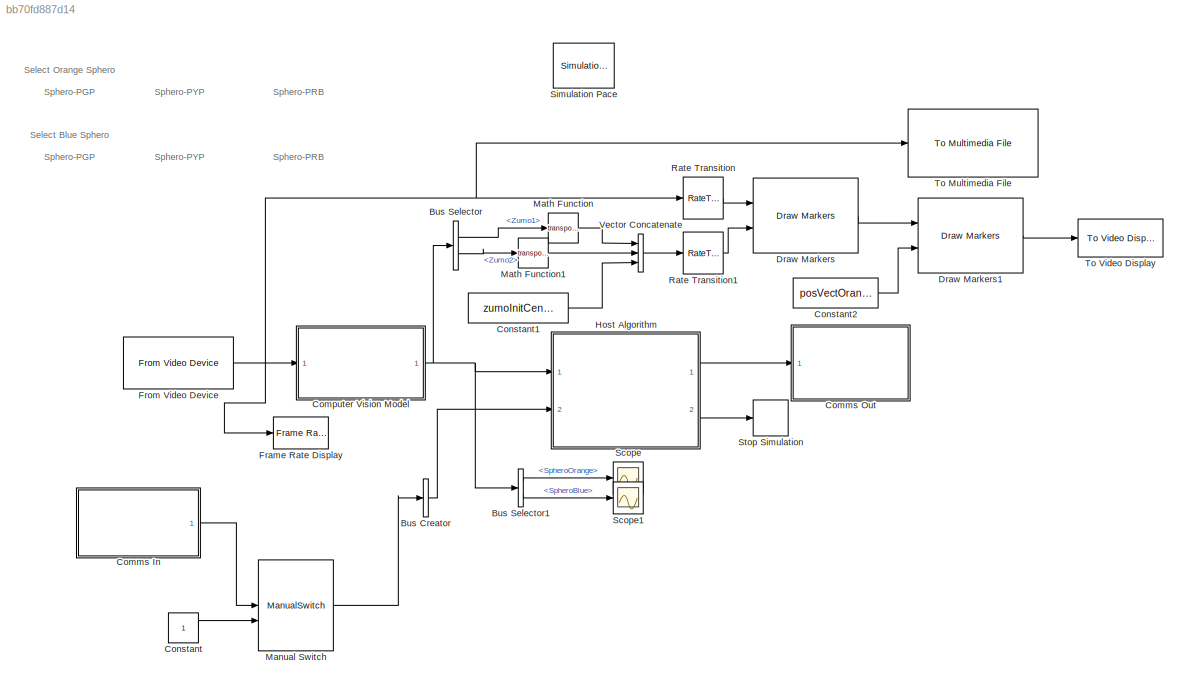
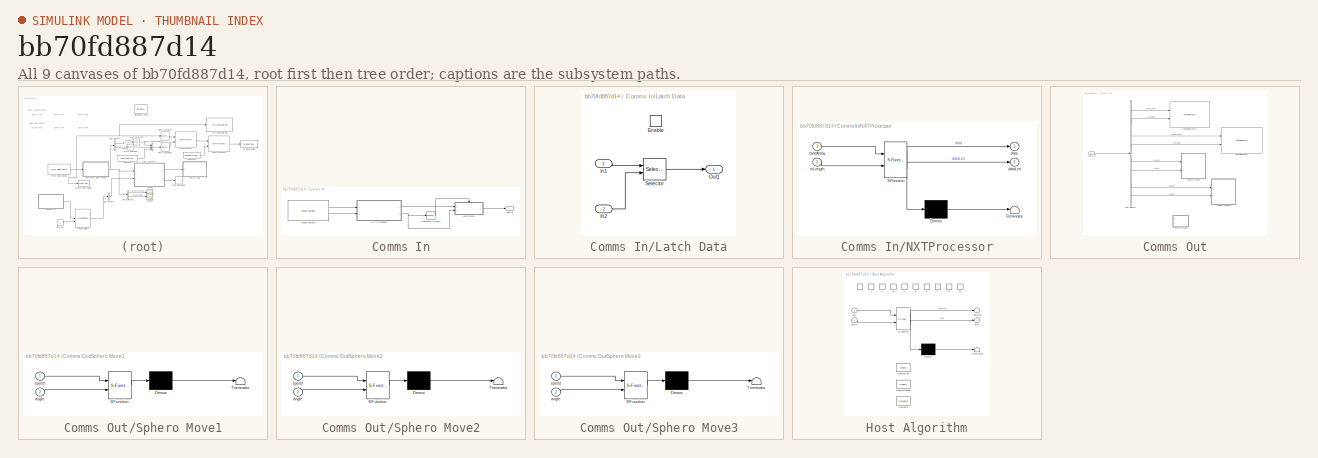
[diagram: thumbnail index - all 9 canvases of the model, root first then tree order]
MODEL slx_bb70fd887d14
KIND model
CONFIG InitFcn = initCV;\n\nfprintf('NXT init\n');\n\n%try\n n = comms.Bt(RobotID.NXT);\n n.reset();\n n.init();\nfprintf('NXT init done\n');
CONFIG StopFcn = %figure; \n%plot(SpheroPos.signals.values(:,1), SpheroPos.signals.values(:, 2), 'kx');\n%hold on; \n%plot(points(:, 1), points(:, 2), 'ro');\n%hold off\n%axis([0 640 0 480])\n\n%distEnd =  pdist([points(end, :); SpheroPos.signals.values(end, :)])
BLOCK [BusCreator] Bus Creator
  DisplayOption = bar
  Inputs = 1
  OutDataTypeStr = Bus: CommsIn
  Ports = [1, 1]
BLOCK [BusSelector] Bus Selector
  Commented = on
  DialogController = Simulink.DDGSource_BusSelector
  OutputSignals = Zumo1,Zumo2
  Ports = [1, 2]
BLOCK [BusSelector] Bus Selector1
  OutputSignals = SpheroOrange,SpheroBlue
  Ports = [1, 2]
BLOCK [SubSystem] Comms In
  Ports = [0, 1]
  RequestExecContextInheritance = off
BLOCK [Reference] Comms In/Compare To Zero  REF=simulink/Logic and Bit
Operations/Compare
To Zero
  OutDataTypeStr = boolean
  Ports = [1, 1]
  SourceBlock = simulink/Logic and Bit\nOperations/Compare\nTo Zero
  SourceType = Compare To Zero
  ZeroCross = on
  relop = >
BLOCK [SubSystem] Comms In/Latch Data
  Ports = [2, 1, 1]
  RequestExecContextInheritance = off
  TreatAsAtomicUnit = on
BLOCK [EnablePort] Comms In/Latch Data/Enable
  Ports = []
BLOCK [Inport] Comms In/Latch Data/In1
  IconDisplay = Port number
  OutDataTypeStr = uint8
BLOCK [Inport] Comms In/Latch Data/In2
  IconDisplay = Port number
  Port = 2
BLOCK [Outport] Comms In/Latch Data/Out1
  IconDisplay = Port number
  InitialOutput = uint8(0)
  OutDataTypeStr = uint8
BLOCK [Selector] Comms In/Latch Data/Selector
  IndexOptions = Index vector (port)
  Indices = [1 3]
  InputPortWidth = 8
  Ports = [2, 1]
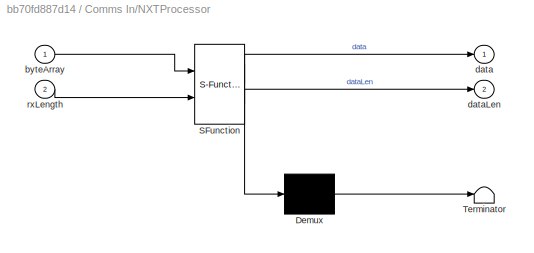
BLOCK [SubSystem] Comms In/NXTProcessor
  ErrorFcn = Stateflow.Translate.translate
  PermitHierarchicalResolution = ExplicitOnly
  Ports = [2, 2]
  RequestExecContextInheritance = off
  SFBlockType = MATLAB Function
  TreatAsAtomicUnit = on
BLOCK [Demux] Comms In/NXTProcessor/ Demux 
  Outputs = 1
  Ports = [1, 1]
BLOCK [S-Function] Comms In/NXTProcessor/ SFunction 
  EnableBusSupport = on
  FunctionName = sf_sfun
  Parameters = NXTBufferSize
  PortCounts = [2 3]
  Ports = [2, 3]
  Tag = Stateflow S-Function hostComms_backup_twoLoops 3
BLOCK [Terminator] Comms In/NXTProcessor/ Terminator 
BLOCK [Inport] Comms In/NXTProcessor/byteArray
  IconDisplay = Port number
BLOCK [Outport] Comms In/NXTProcessor/data
  IconDisplay = Port number
BLOCK [Outport] Comms In/NXTProcessor/dataLen
  IconDisplay = Port number
  Port = 2
BLOCK [Inport] Comms In/NXTProcessor/rxLength
  IconDisplay = Port number
  Port = 2
BLOCK [Outport] Comms In/hostIn
  IconDisplay = Port number
  OutDataTypeStr = uint8
BLOCK [Reference] Comms In/readBluetooth  REF=hostCommsLib/readBluetooth
  Ports = [0, 2]
  SourceBlock = hostCommsLib/readBluetooth
  numBytes = 4
  robotId = RobotID.NXT
BLOCK [SubSystem] Comms Out
  Ports = [1]
  RequestExecContextInheritance = off
BLOCK [BusSelector] Comms Out/Bus Selector
  OutputSignals = Zumo1.motorSpeed,Zumo1.TxEnable,Zumo2.motorSpeed,Zumo2.TxEnable,SpheroOrange.velocity,SpheroOrange.angle,SpheroBlue.velocity,SpheroBlue.angle
  Ports = [1, 8]
BLOCK [SubSystem] Comms Out/Sphero Move1
  Commented = on
  ErrorFcn = Stateflow.Translate.translate
  PermitHierarchicalResolution = ExplicitOnly
  Ports = [2]
  RequestExecContextInheritance = off
  SFBlockType = MATLAB Function
  TreatAsAtomicUnit = on
BLOCK [Demux] Comms Out/Sphero Move1/ Demux 
  Outputs = 1
  Ports = [1, 1]
BLOCK [S-Function] Comms Out/Sphero Move1/ SFunction 
  EnableBusSupport = on
  FunctionName = sf_sfun
  Parameters = sphero_RobotID
  PortCounts = [2 1]
  Ports = [2, 1]
  Tag = Stateflow S-Function hostComms_backup_twoLoops 1
BLOCK [Terminator] Comms Out/Sphero Move1/ Terminator 
BLOCK [Inport] Comms Out/Sphero Move1/angle
  IconDisplay = Port number
  Port = 2
BLOCK [Inport] Comms Out/Sphero Move1/speed
  IconDisplay = Port number
BLOCK [SubSystem] Comms Out/Sphero Move2
  ErrorFcn = Stateflow.Translate.translate
  PermitHierarchicalResolution = ExplicitOnly
  Ports = [2]
  RequestExecContextInheritance = off
  SFBlockType = MATLAB Function
  TreatAsAtomicUnit = on
BLOCK [Demux] Comms Out/Sphero Move2/ Demux 
  Outputs = 1
  Ports = [1, 1]
BLOCK [S-Function] Comms Out/Sphero Move2/ SFunction 
  EnableBusSupport = on
  FunctionName = sf_sfun
  Parameters = sphero_RobotID
  PortCounts = [2 1]
  Ports = [2, 1]
  Tag = Stateflow S-Function hostComms_backup_twoLoops 5
BLOCK [Terminator] Comms Out/Sphero Move2/ Terminator 
BLOCK [Inport] Comms Out/Sphero Move2/angle
  IconDisplay = Port number
  Port = 2
BLOCK [Inport] Comms Out/Sphero Move2/speed
  IconDisplay = Port number
BLOCK [SubSystem] Comms Out/Sphero Move3
  ErrorFcn = Stateflow.Translate.translate
  PermitHierarchicalResolution = ExplicitOnly
  Ports = [2]
  RequestExecContextInheritance = off
  SFBlockType = MATLAB Function
  TreatAsAtomicUnit = on
BLOCK [Demux] Comms Out/Sphero Move3/ Demux 
  Outputs = 1
  Ports = [1, 1]
BLOCK [S-Function] Comms Out/Sphero Move3/ SFunction 
  EnableBusSupport = on
  FunctionName = sf_sfun
  Parameters = sphero_RobotID
  PortCounts = [2 1]
  Ports = [2, 1]
  Tag = Stateflow S-Function hostComms_backup_twoLoops 4
BLOCK [Terminator] Comms Out/Sphero Move3/ Terminator 
BLOCK [Inport] Comms Out/Sphero Move3/angle
  IconDisplay = Port number
  Port = 2
BLOCK [Inport] Comms Out/Sphero Move3/speed
  IconDisplay = Port number
BLOCK [Inport] Comms Out/hostOut
  IconDisplay = Port number
  OutDataTypeStr = Bus: CommsOut
BLOCK [Reference] Comms Out/writeBluetooth  REF=hostCommsLib/writeBluetooth
  Ports = [2]
  SourceBlock = hostCommsLib/writeBluetooth
  robotId = RobotID.ZUMO_329B
BLOCK [Reference] Comms Out/writeBluetooth1  REF=hostCommsLib/writeBluetooth
  Ports = [2]
  SourceBlock = hostCommsLib/writeBluetooth
  robotId = RobotID.ZUMO_32B0
BLOCK [ModelReference] Computer Vision Model
  CopyOfModelName = processCamera
  DefaultDataLogging = on
  ModelNameDialog = processCamera
  ModelReferenceVersion = 1.20
  Ports = [1, 1]
BLOCK [Constant] Constant
  OutDataTypeStr = uint8
BLOCK [Constant] Constant1
  Commented = on
  Value = zumoInitCentroids'
  VectorParams1D = off
BLOCK [Constant] Constant2
  Commented = on
  Value = posVectOrange'
BLOCK [Reference] Draw Markers  REF=visiontextngfix/Draw Markers
  Commented = on
  LockScale = off
  Ports = [2, 1]
  SourceBlock = visiontextngfix/Draw Markers
  SourceType = Draw Markers
  accumFracLength = 14
  accumMode = Same as product output
  accumWordLength = 32
  antialiasing = off
  color = [255 0 0]
  display = User-specified value
  fill = off
  fillClrSource = Specify via dialog
  imagePorts = One multidimensional signal
  inType = Obsolete
  intensity = 200
  memoryFracLength = 15
  memoryMode = Specify word length
  memoryWordLength = 16
  opacity = 0.6
  overflowMode = off
  prodOutputFracLength = 14
  prodOutputMode = Binary point scaling
  prodOutputWordLength = 32
  roundingMode = Floor
  shape = Square
  size = 3
  viewport = Entire image
BLOCK [Reference] Draw Markers1  REF=visiontextngfix/Draw Markers
  Commented = on
  LockScale = off
  Ports = [2, 1]
  SourceBlock = visiontextngfix/Draw Markers
  SourceType = Draw Markers
  accumFracLength = 14
  accumMode = Same as product output
  accumWordLength = 32
  antialiasing = off
  color = [255 0 0]
  display = User-specified value
  fill = off
  fillClrSource = Specify via dialog
  imagePorts = One multidimensional signal
  inType = Obsolete
  intensity = 200
  memoryFracLength = 15
  memoryMode = Specify word length
  memoryWordLength = 16
  opacity = 0.6
  overflowMode = off
  prodOutputFracLength = 14
  prodOutputMode = Binary point scaling
  prodOutputWordLength = 32
  roundingMode = Floor
  shape = X-mark
  size = 3
  viewport = Entire image
BLOCK [Reference] Frame Rate Display  REF=visionsinks/Frame Rate
Display
  Ports = [1]
  SourceBlock = visionsinks/Frame Rate\nDisplay
  SourceType = Frame Rate Display
  UpdateRate = 10
BLOCK [Reference] From Video Device  REF=imaqlib/From Video Device
  AllMetadata = IsPositionTracked;IsSkeletonTracked;JointDepthIndices;JointImageIndices;JointTrackingState;JointWorldCoordinates;PositionDepthIndices;PositionImageIndices;PositionWorldCoordinates;SegmentationData;SkeletonTrackingID
  BayerSensorAlignment = grbg
  BlockHandle = 1921.0006
  CanDoHWTrigger = no
  DataType = single
  DevXMLPath = <path>
  Device = winvideo 1 (Logitech QuickCam Pro 9000)
  DeviceMenu = winvideo 1 (Logitech QuickCam Pro 9000)
  EnableHWTrigger = off
  EngLibPath = <path>
  EngXMLPath = <path>
  ObjConstructor = videoinput('winvideo', 1)
  OutputPortsMode = One multidimensional signal
  Ports = [0, 1]
  ROIColumn = 0
  ROIHeight = 480
  ROIPosition = [0 0 480 640]
  ROIRow = 0
  ROIWidth = 640
  ReturnedColorSpace = rgb
  SampleTime = 0.2
  SourceBlock = imaqlib/From Video Device
  SourceType = From Video Device
  TriggerConfiguration = none/none
  UserDataPersistent = on
  VideoFormat = RGB24_640x480
  VideoFormatMenu = RGB24_640x480
  VideoSource = input1
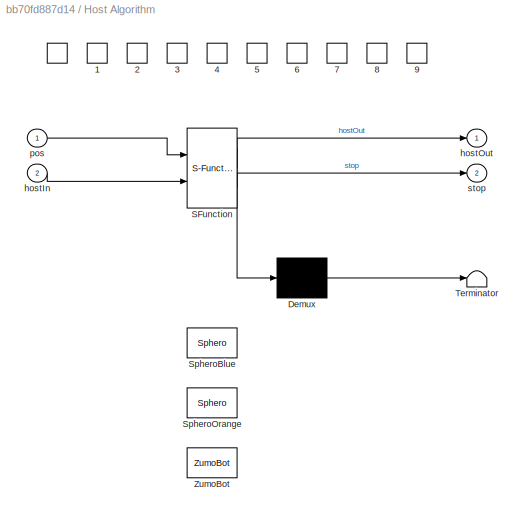
BLOCK [SubSystem] Host Algorithm
  AncestorBlock = hostLogic/Host Algorithm
  ErrorFcn = Stateflow.Translate.translate
  PermitHierarchicalResolution = ExplicitOnly
  Ports = [2, 2]
  RequestExecContextInheritance = off
  SFBlockType = Chart
  TreatAsAtomicUnit = on
BLOCK [DataStoreMemory] Host Algorithm/ 
  DataStoreName = DoneBlue
  InitialValue = Stateflow.SLINSF.SimulinkMan.getDSMInitVal([1], 0, 'DoneBlue')
  OutDataTypeStr = boolean
  SignalType = real
BLOCK [DataStoreMemory] Host Algorithm/ 1
  DataStoreName = DoneOrange
  InitialValue = Stateflow.SLINSF.SimulinkMan.getDSMInitVal([1], 0, 'DoneOrange')
  OutDataTypeStr = boolean
  SignalType = real
BLOCK [DataStoreMemory] Host Algorithm/ 2
  DataStoreName = angleBlue
  InitialValue = Stateflow.SLINSF.SimulinkMan.getDSMInitVal([1], 0, 'angleBlue')
  OutDataTypeStr = double
  SignalType = real
BLOCK [DataStoreMemory] Host Algorithm/ 3
  DataStoreName = angleOrange
  InitialValue = Stateflow.SLINSF.SimulinkMan.getDSMInitVal([1], 0, 'angleOrange')
  OutDataTypeStr = double
  SignalType = real
BLOCK [DataStoreMemory] Host Algorithm/ 4
  DataStoreName = curPosBlue
  InitialValue = Stateflow.SLINSF.SimulinkMan.getDSMInitVal([2], 0, 'curPosBlue')
  OutDataTypeStr = double
  SignalType = real
BLOCK [DataStoreMemory] Host Algorithm/ 5
  DataStoreName = curPosOrange
  InitialValue = Stateflow.SLINSF.SimulinkMan.getDSMInitVal([2], 0, 'curPosOrange')
  OutDataTypeStr = double
  SignalType = real
BLOCK [DataStoreMemory] Host Algorithm/ 6
  DataStoreName = desPosBlue
  InitialValue = Stateflow.SLINSF.SimulinkMan.getDSMInitVal([2], 0, 'desPosBlue')
  OutDataTypeStr = double
  SignalType = real
BLOCK [DataStoreMemory] Host Algorithm/ 7
  DataStoreName = desPosOrange
  InitialValue = Stateflow.SLINSF.SimulinkMan.getDSMInitVal([2], 0, 'desPosOrange')
  OutDataTypeStr = double
  SignalType = real
BLOCK [DataStoreMemory] Host Algorithm/ 8
  DataStoreName = velocityBlue
  InitialValue = Stateflow.SLINSF.SimulinkMan.getDSMInitVal([1], 0, 'velocityBlue')
  OutDataTypeStr = double
  SignalType = real
BLOCK [DataStoreMemory] Host Algorithm/ 9
  DataStoreName = velocityOrange
  InitialValue = Stateflow.SLINSF.SimulinkMan.getDSMInitVal([1], 0, 'velocityOrange')
  OutDataTypeStr = double
  SignalType = real
BLOCK [Demux] Host Algorithm/ Demux 
  Outputs = 1
  Ports = [1, 1]
BLOCK [S-Function] Host Algorithm/ SFunction 
  EnableBusSupport = on
  FunctionName = sf_sfun
  Parameters = dThresh,hardcodeAngle,posVectBlue,posVectOrange,tClose,tOpen,tSpheroStop,z1Speed,z2Speed,zumoInitCentroids
  PortCounts = [2 3]
  Ports = [2, 3]
  Tag = Stateflow S-Function hostComms_backup_twoLoops 2
BLOCK [Terminator] Host Algorithm/ Terminator 
BLOCK [Reference] Host Algorithm/SpheroBlue  REF=minionLogic/Sphero
  DSMNames = Done,angle,curPos,desPos,velocity
  DSMValues = DoneBlue,angleBlue,curPosBlue,desPosBlue,velocityBlue
  Ports = []
  SourceBlock = minionLogic/Sphero
BLOCK [Reference] Host Algorithm/SpheroOrange  REF=minionLogic/Sphero
  DSMNames = Done,angle,curPos,desPos,velocity
  DSMValues = DoneOrange,angleOrange,curPosOrange,desPosOrange,velocityOrange
  Ports = []
  SourceBlock = minionLogic/Sphero
BLOCK [Reference] Host Algorithm/ZumoBot  REF=minionLogic/ZumoBot
  Commented = on
  Ports = []
  SourceBlock = minionLogic/ZumoBot
  SourceType = SubSystem
BLOCK [Inport] Host Algorithm/hostIn
  IconDisplay = Port number
  Port = 2
BLOCK [Outport] Host Algorithm/hostOut
  IconDisplay = Port number
BLOCK [Inport] Host Algorithm/pos
  IconDisplay = Port number
BLOCK [Outport] Host Algorithm/stop
  IconDisplay = Port number
  Port = 2
BLOCK [ManualSwitch] Manual Switch
BLOCK [Math] Math Function
  Commented = on
  Operator = transpose
  Ports = [1, 1]
BLOCK [Math] Math Function1
  Commented = on
  Operator = transpose
  Ports = [1, 1]
BLOCK [RateTransition] Rate Transition
  Commented = on
  OutPortSampleTime = 1.0
BLOCK [RateTransition] Rate Transition1
  Commented = on
  OutPortSampleTime = 1.0
BLOCK [Scope] Scope
  Floating = off
  NumInputPorts = 1
  Ports = [1]
  ShowLegends = off
  YMax = 0
  YMin = -2
BLOCK [Scope] Scope1
  Floating = off
  NumInputPorts = 1
  Ports = [1]
  SaveName = ScopeData1
  ShowLegends = off
BLOCK [Reference] Simulation Pace  REF=aerolibanimutils/Simulation Pace
  AttributesFormatString = %<SimulationPace> sec/sec
  OutputPaceError = off
  Ports = []
  SampleTime = 0.1
  SimulationPace = 1
  SleepMode = MATLAB Thread
  SourceBlock = aerolibanimutils/Simulation Pace
  SourceType = Simulation Pace
BLOCK [Stop] Stop Simulation
BLOCK [Reference] To Multimedia File  REF=dspvision/To Multimedia File
  Commented = on
  Ports = [1]
  SourceBlock = dspvision/To Multimedia File
  SourceType = To Multimedia File
  audioCompressor = None (uncompressed)
  audioDatatype = Determine from input data type
  fileType = MPEG4
  fourcc = RGB
  imagePorts = One multidimensional signal
  mj2000CompFactor = 10
  outputFilename = TrialRun.mp4
  streamSelection = Video only
  videoCompressor = None (uncompressed)
  videoQuality = 75
BLOCK [Reference] To Video Display  REF=visionsinks/To Video Display
  Commented = on
  OutputDevice = On-screen video monitor
  Ports = [1]
  SourceBlock = visionsinks/To Video Display
  SourceType = To Video Display
  dataOrg = Column-major
  fullScreen = off
  imagePorts = One multidimensional signal
  inputColorFormat = RGB
  inputType = Obsolete
  isWindowOpen = off
  openAtMdlStart = on
  saveWindowSize = off
  videoWindowHeight = 480
  videoWindowWidth = 640
  videoWindowX = 710
  videoWindowY = 48
BLOCK [Concatenate] Vector Concatenate
  Commented = on
  Mode = Multidimensional array
  NumInputs = 3
  Ports = [3, 1]
ANNOTATION (root): Select Blue Sphero
ANNOTATION (root): Select Orange Sphero
ANNOTATION (root): Sphero-PGP
ANNOTATION (root): Sphero-PRB
ANNOTATION (root): Sphero-PYP
LINE Bus Creator:1 -> Host Algorithm:2
LINE Bus Selector1:1 -> Scope:1
LINE Bus Selector1:2 -> Scope1:1
LINE Bus Selector:1 -> Math Function:1
LINE Bus Selector:2 -> Math Function1:1
LINE Comms In/Compare To Zero:1 -> Comms In/Latch Data:enable
LINE Comms In/Latch Data/In1:1 -> Comms In/Latch Data/Selector:1
LINE Comms In/Latch Data/In2:1 -> Comms In/Latch Data/Selector:2
LINE Comms In/Latch Data/Selector:1 -> Comms In/Latch Data/Out1:1
LINE Comms In/Latch Data:1 -> Comms In/hostIn:1
LINE Comms In/NXTProcessor:1 -> Comms In/Latch Data:1
NET Comms In/NXTProcessor:2 -> Comms In/Compare To Zero:1, Comms In/Latch Data:2
LINE Comms In/readBluetooth:1 -> Comms In/NXTProcessor:1
LINE Comms In/readBluetooth:2 -> Comms In/NXTProcessor:2
LINE Comms In:1 -> Manual Switch:1
LINE Comms Out/Bus Selector:1 -> Comms Out/writeBluetooth1:1
LINE Comms Out/Bus Selector:2 -> Comms Out/writeBluetooth1:2
LINE Comms Out/Bus Selector:3 -> Comms Out/writeBluetooth:1
LINE Comms Out/Bus Selector:4 -> Comms Out/writeBluetooth:2
LINE Comms Out/Bus Selector:5 -> Comms Out/Sphero Move2:1
LINE Comms Out/Bus Selector:6 -> Comms Out/Sphero Move2:2
LINE Comms Out/Bus Selector:7 -> Comms Out/Sphero Move3:1
LINE Comms Out/Bus Selector:8 -> Comms Out/Sphero Move3:2
LINE Comms Out/hostOut:1 -> Comms Out/Bus Selector:1
NET Computer Vision Model:1 -> Bus Selector1:1, Bus Selector:1, Host Algorithm:1
LINE Constant1:1 -> Vector Concatenate:3
LINE Constant2:1 -> Draw Markers1:2
LINE Constant:1 -> Manual Switch:2
LINE Draw Markers1:1 -> To Video Display:1
LINE Draw Markers:1 -> Draw Markers1:1
NET From Video Device:1 -> Computer Vision Model:1, Frame Rate Display:1, Rate Transition:1, To Multimedia File:1
LINE Host Algorithm:1 -> Comms Out:1
LINE Host Algorithm:2 -> Stop Simulation:1
LINE Manual Switch:1 -> Bus Creator:1
LINE Math Function1:1 -> Vector Concatenate:2
LINE Math Function:1 -> Vector Concatenate:1
LINE Rate Transition1:1 -> Draw Markers:2
LINE Rate Transition:1 -> Draw Markers:1
LINE Vector Concatenate:1 -> Rate Transition1:1
note: NET lines group one-source signal fan-out (src -> all destinations, sorted); 1:1 wires keep LINE
CHART Comms Out/Sphero Move1 states=1 transitions=1
  STATE_LABEL 'eML_blk_kernel()'
  STATE_LABEL "SCRIPT:\nfunction fcn(speed, angle, sphero_RobotID)\n%#codegen\ncoder.extrinsic('move_sphero_comms')\n\nmove_sphero_comms(sphero_RobotID, speed, angle);"
CHART Host Algorithm states=28 transitions=26
  STATE_LABEL 'ZumoBot'
  STATE_LABEL 'SpheroBlue'
  STATE_LABEL 'SpheroOrange'
  STATE_LABEL "Top\nen:\nhostOut.Zumo1.motorSpeed = uint8(0);\nhostOut.Zumo1.TxEnable = 0;\nhostOut.Zumo2.motorSpeed = uint8(0);\nhostOut.Zumo2.TxEnable = 0;\nvelocityOrange = 0;\nangleOrange = 0;\nvelocityBlue = 0;\nangleBlue = 0;\nstop = 0;\nen,du,ex:\n% map all inputs to DSM's\ncurPosOrange = pos.SpheroOrange;\ncurPosBlue = pos.SpheroBlue;\n%\n% initialize des pos blue/orange for now\n%desPosOrange = [360 240]';\n%desPosBlue =...<+13ch>"
  STATE_LABEL 'Standby\n%Wait for NXT\n%to ascend\n%mountain'
  STATE_LABEL 'Blink\nentry:\n\tspheroBlink(RobotID.SPHERO_BLUE, idx);\n\tspheroBlink(RobotID.SPHERO_ORANGE, idx);\n\tidx= idx+1;\non every(5, tick):\n\tspheroBlink(RobotID.SPHERO_BLUE, idx);\n\tspheroBlink(RobotID.SPHERO_ORANGE, idx);\n\tidx= idx+1;'
  STATE_LABEL 'SpheroHardCodedMoveO\nen, du: MoveSphero(100, hardcodeAngle, RobotID.SPHERO_ORANGE);'
  STATE_LABEL 'Workspace (sldd) Parameters\nposVectOrange %initialized by CV\nposVectBlue %initialized by CV\nKp\nKd\nKi\nrestartspeed\nstopRadius\nstopspeed'
  STATE_LABEL 'MoveOPoint1 % SpheroOrange to init point\nen:\ndesPosOrange = posVectOrange(:,1);\nSpheroOrange.TurnOn();\n'
  STATE_LABEL 'MoveOPoint2 % SpheroOrange to gate\nen:\ndesPosOrange = posVectOrange(:,2);\nSpheroOrange.TurnOn();\n'
  STATE_LABEL 'SpheroHardCodedMoveB\nen, du: MoveSphero(100, hardcodeAngle, RobotID.SPHERO_BLUE);'
  STATE_LABEL 'MoveBPoint1 % SpheroBlue to init point\nen:\ndesPosBlue = posVectBlue(:,1);\nSpheroBlue.TurnOn();\n'
  STATE_LABEL 'spheroBlink(robot, index)'
  STATE_LABEL "SCRIPT:\nfunction spheroBlink(robot, index)\n \ncoder.extrinsic('spheroBlinking');\n\nspheroBlinking(robot, index);\n\n"
  STATE_LABEL 'tf = zumoClose(initPos,curPos,dTh)'
  STATE_LABEL '{tf = norm(curPos.Zumo1 - initPos(:,1)) <= dTh;}'
  STATE_LABEL 'Blink1\nentry:\nidx = 1;\nspheroBlink(RobotID.SPHERO_ORANGE, idx);\nidx= idx+1;\non every(5, tick):\nspheroBlink(RobotID.SPHERO_ORANGE, idx);\nidx= idx+1;'
  STATE_LABEL 'MoveSphero(speed, angle, sphero_RobotID)'
  STATE_LABEL "SCRIPT:\nfunction MoveSphero(speed, angle, sphero_RobotID)\n%#codegen\ncoder.extrinsic('move_sphero_comms')\n\nmove_sphero_comms(sphero_RobotID, speed, angle);\n\n"
  STATE_LABEL 'State2 % Zumo open gate\nen:\nhostOut.Zumo1.motorSpeed = uint8(z1Speed);\nhostOut.Zumo1.TxEnable = 1;\nhostOut.Zumo2.motorSpeed = uint8(z2Speed);\nhostOut.Zumo2.TxEnable = 1;\nex:\nhostOut.Zumo1.motorSpeed = uint8(0);\nhostOut.Zumo2.motorSpeed = uint8(0);\n'
  STATE_LABEL 'State3 % SpheroOrange Move to center\nen:\ndesPosOrange = posVectOrange(:,3);\nSpheroOrange.TurnOn()'
  STATE_LABEL 'State4 % Zumo begin close gate\nen:\nhostOut.Zumo1.motorSpeed = uint8(z1Speed);\nhostOut.Zumo2.motorSpeed = uint8(z2Speed);\n'
  STATE_LABEL 'State5 % Zumo stop\nen:\nhostOut.Zumo1.motorSpeed = uint8(0);\nhostOut.Zumo2.motorSpeed = uint8(0);'
  STATE_LABEL 'State6 % SpheroBlue to gate\nen:\ndesPosBlue = posVectBlue(:,2);\nSpheroBlue.TurnOn();\n'
  STATE_LABEL 'Blink2\nentry:\nidx = 1;\nspheroBlink(RobotID.SPHERO_BLUE, idx);\nidx= idx+1;\non every(5, tick):\nspheroBlink(RobotID.SPHERO_BLUE, idx);\nidx= idx+1;'
  STATE_LABEL 'State7 % Zumo open gate\nen:\nhostOut.Zumo1.motorSpeed = uint8(z1Speed);\nhostOut.Zumo1.TxEnable = 1;\nhostOut.Zumo2.motorSpeed = uint8(z2Speed);\nhostOut.Zumo2.TxEnable = 1;\nex:\nhostOut.Zumo1.motorSpeed = uint8(0);\nhostOut.Zumo2.motorSpeed = uint8(0);\n'
  STATE_LABEL 'State8 % SpheroBlue Move to center\nen:\ndesPosBlue = posVectBlue(:,3);\nSpheroBlue.TurnOn()'
  STATE_LABEL 'State9 % Zumo begin close gate\nen:\nhostOut.Zumo1.motorSpeed = uint8(z1Speed);\nhostOut.Zumo2.motorSpeed = uint8(z2Speed);\n'
  STATE_LABEL 'State10 % Zumo stop\nen:\nhostOut.Zumo1.motorSpeed = uint8(0);\nhostOut.Zumo2.motorSpeed = uint8(0);'
  STATE_LABEL 'State11 %Stop model\nen: stop = 1;'
  STATE_LABEL '[hostIn.NXT == 1 || hostIn.NXT == 99 || after(90,sec)]{idx = 1;}'
  STATE_LABEL '[idx>5]{spheroBlink(RobotID.SPHERO_BLUE, 8); \n\t\tspheroBlink(RobotID.SPHERO_ORANGE, 8);} '
  STATE_LABEL '[all(curPosOrange>0)]'
  STATE_LABEL '[DoneOrange]'
  STATE_LABEL '[after(tSpheroStop, sec)]{SpheroOrange.TurnOff;} \n%condition when sphero is done moving?'
  STATE_LABEL '[DoneOrange]'
  STATE_LABEL '[after(tSpheroStop, sec)]{SpheroOrange.TurnOff;} \n%condition when sphero is done moving?'
  STATE_LABEL '[all(curPosBlue>0)]'
  STATE_LABEL '[DoneBlue]'
  STATE_LABEL '[after(tSpheroStop, sec)]{SpheroBlue.TurnOff;} \n%condition when sphero is done moving?'
CHART Comms In/NXTProcessor states=1 transitions=1
  STATE_LABEL 'eML_blk_kernel()'
  STATE_LABEL 'SCRIPT:\nfunction [data,dataLen] = nxtProcessor(byteArray,rxLength, NXTBufferSize)\n%#codegen\n\npersistent NXT;\n\nif(isempty(NXT))\n    bufferLen = uint8(NXTBufferSize);\n    NXT = comms.RawNXTDataProcessor(bufferLen);\nend\n\n[data,dataLen] = NXT.process(byteArray,uint8(rxLength));\n\nend'
CHART Comms Out/Sphero Move3 states=1 transitions=1
  STATE_LABEL 'eML_blk_kernel()'
  STATE_LABEL "SCRIPT:\nfunction fcn(speed, angle, sphero_RobotID)\n%#codegen\ncoder.extrinsic('move_sphero_comms')\n\nmove_sphero_comms(sphero_RobotID, speed, angle);"
CHART Comms Out/Sphero Move2 states=1 transitions=1
  STATE_LABEL 'eML_blk_kernel()'
  STATE_LABEL "SCRIPT:\nfunction fcn(speed, angle, sphero_RobotID)\n%#codegen\ncoder.extrinsic('move_sphero_comms')\n\nmove_sphero_comms(sphero_RobotID, speed, angle);"
note: 3 file-system paths scrubbed to <path> (not preserved elsewhere — flat text is the only slx artifact)
